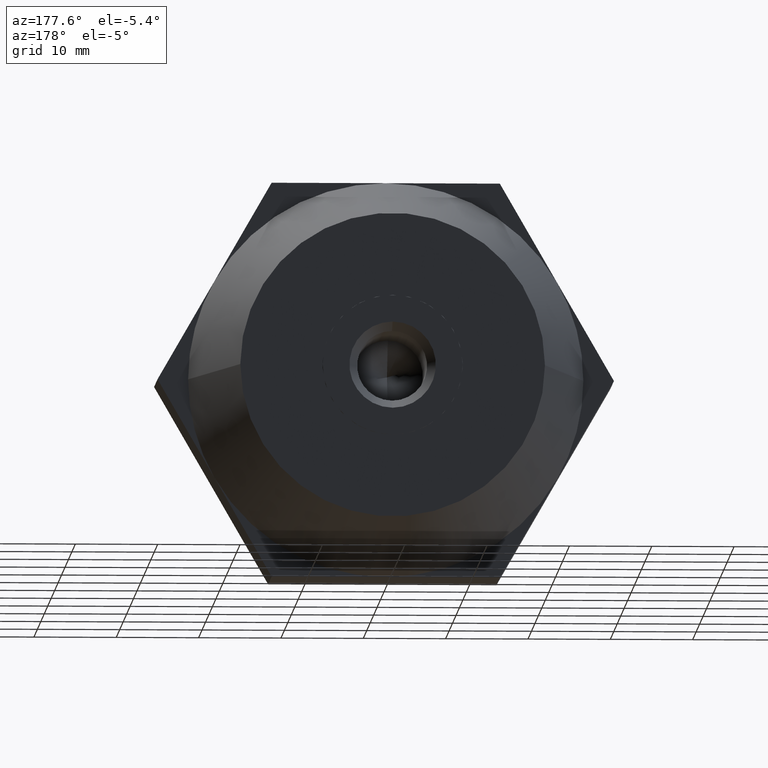
[diagram: clean part render]
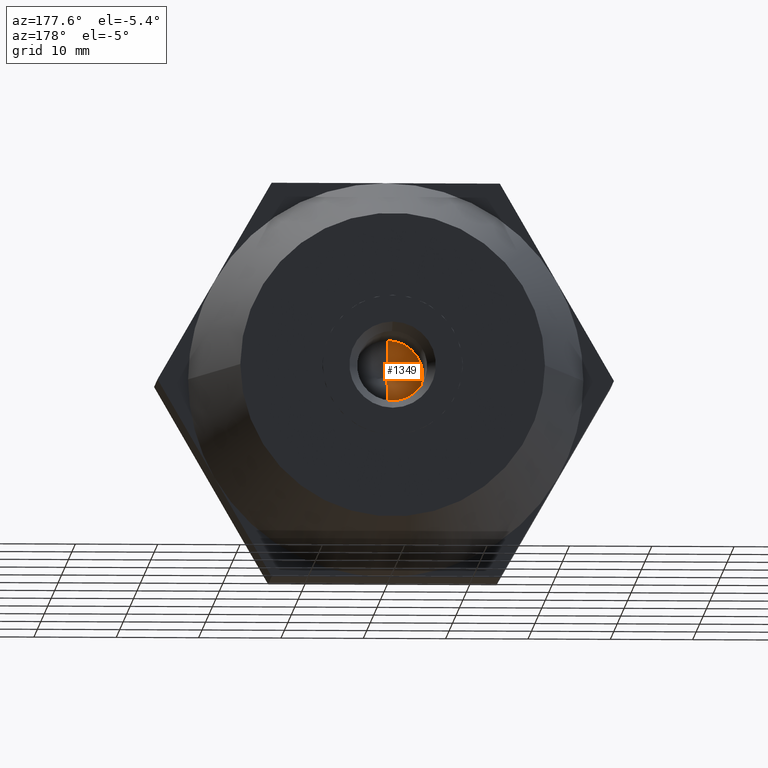
[diagram: same view with one face highlighted and labeled with its STEP entity id]
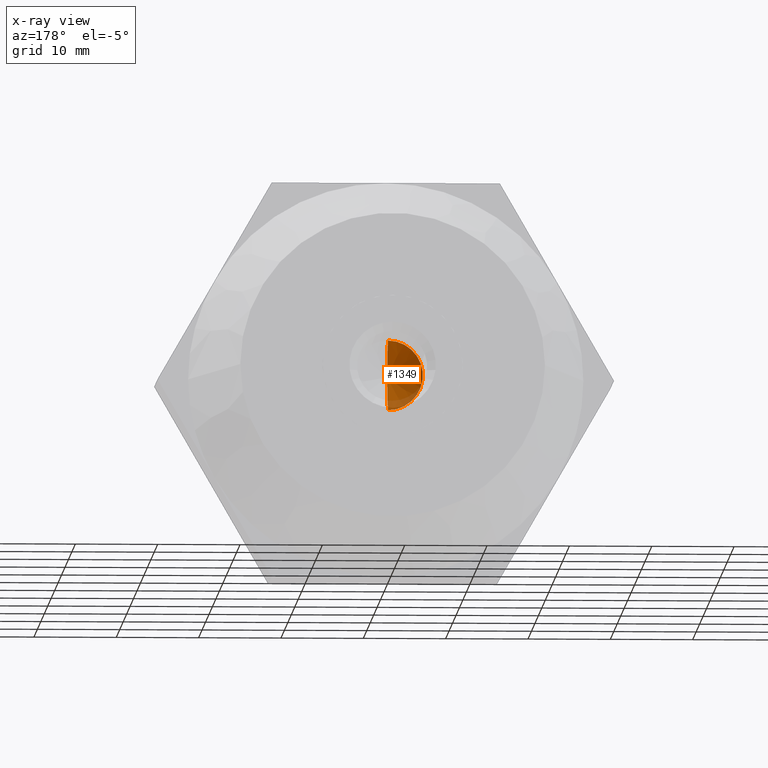
[diagram: x-ray of the same camera — body ghosted, the highlighted face saturated]
A machine part, auxiliary view. The second image highlights one B-rep face of the part: STEP entity #1349.
The next image is the same camera in x-ray: the body ghosted, the highlighted face saturated — about 12% of this face is hidden behind the body in this view.
In plain terms, the highlighted conical surface has half-angle 59 deg.
Its self-contained STEP definition (entity closure, byte-faithful):
#73 = EDGE_LOOP ( 'NONE', ( #578, #115, #1649 ) ) ;
#115 = ORIENTED_EDGE ( 'NONE', *, *, #210, .T. ) ;
#202 = EDGE_CURVE ( 'NONE', #3308, #347, #1919, .T. ) ;
#210 = EDGE_CURVE ( 'NONE', #3308, #3950, #2936, .T. ) ;
#347 = VERTEX_POINT ( 'NONE', #3090 ) ;
#378 = DIRECTION ( 'NONE',  ( 0.0000000000000000000, 0.0000000000000000000, 1.000000000000000000 ) ) ;
#527 = DIRECTION ( 'NONE',  ( 0.0000000000000000000, 1.000000000000000000, 0.0000000000000000000 ) ) ;
#555 = DIRECTION ( 'NONE',  ( 1.049727191138618200E-016, 0.5150380749100549300, -0.8571673007021118900 ) ) ;
#578 = ORIENTED_EDGE ( 'NONE', *, *, #202, .F. ) ;
#684 = VECTOR ( 'NONE', #2364, 999.9999999999998900 ) ;
#766 = DIRECTION ( 'NONE',  ( 0.0000000000000000000, 0.0000000000000000000, 1.000000000000000000 ) ) ;
#840 = CARTESIAN_POINT ( 'NONE',  ( 5.204748896376250700E-016, 3.050000000000000300, -4.250000000000000000 ) ) ;
#979 = CIRCLE ( 'NONE', #3478, 4.250000000000000000 ) ;
#1114 = VECTOR ( 'NONE', #555, 999.9999999999998900 ) ;
#1349 = ADVANCED_FACE ( 'NONE', ( #3706 ), #2538, .F. ) ;
#1649 = ORIENTED_EDGE ( 'NONE', *, *, #3284, .T. ) ;
#1919 = LINE ( 'NONE', #2998, #684 ) ;
#2364 = DIRECTION ( 'NONE',  ( 0.0000000000000000000, 0.5150380749100549300, 0.8571673007021118900 ) ) ;
#2538 = CONICAL_SURFACE ( 'NONE', #2853, 4.250000000000000000, 1.029744258676653600 ) ;
#2618 = CARTESIAN_POINT ( 'NONE',  ( -4.042230298373044700E-015, 0.4963423691328700000, 0.0000000000000000000 ) ) ;
#2853 = AXIS2_PLACEMENT_3D ( 'NONE', #2942, #527, #766 ) ;
#2936 = LINE ( 'NONE', #840, #1114 ) ;
#2942 = CARTESIAN_POINT ( 'NONE',  ( 0.0000000000000000000, 3.050000000000000300, 0.0000000000000000000 ) ) ;
#2998 = CARTESIAN_POINT ( 'NONE',  ( 0.0000000000000000000, 3.050000000000000300, 4.250000000000000000 ) ) ;
#3005 = CARTESIAN_POINT ( 'NONE',  ( 0.0000000000000000000, 3.050000000000000300, 0.0000000000000000000 ) ) ;
#3090 = CARTESIAN_POINT ( 'NONE',  ( 0.0000000000000000000, 3.050000000000000300, 4.250000000000000000 ) ) ;
#3284 = EDGE_CURVE ( 'NONE', #3950, #347, #979, .T. ) ;
#3308 = VERTEX_POINT ( 'NONE', #2618 ) ;
#3424 = DIRECTION ( 'NONE',  ( 0.0000000000000000000, 1.000000000000000000, 0.0000000000000000000 ) ) ;
#3478 = AXIS2_PLACEMENT_3D ( 'NONE', #3005, #3424, #378 ) ;
#3589 = CARTESIAN_POINT ( 'NONE',  ( 5.204748896376250700E-016, 3.050000000000000300, -4.250000000000000000 ) ) ;
#3706 = FACE_OUTER_BOUND ( 'NONE', #73, .T. ) ;
#3950 = VERTEX_POINT ( 'NONE', #3589 ) ;